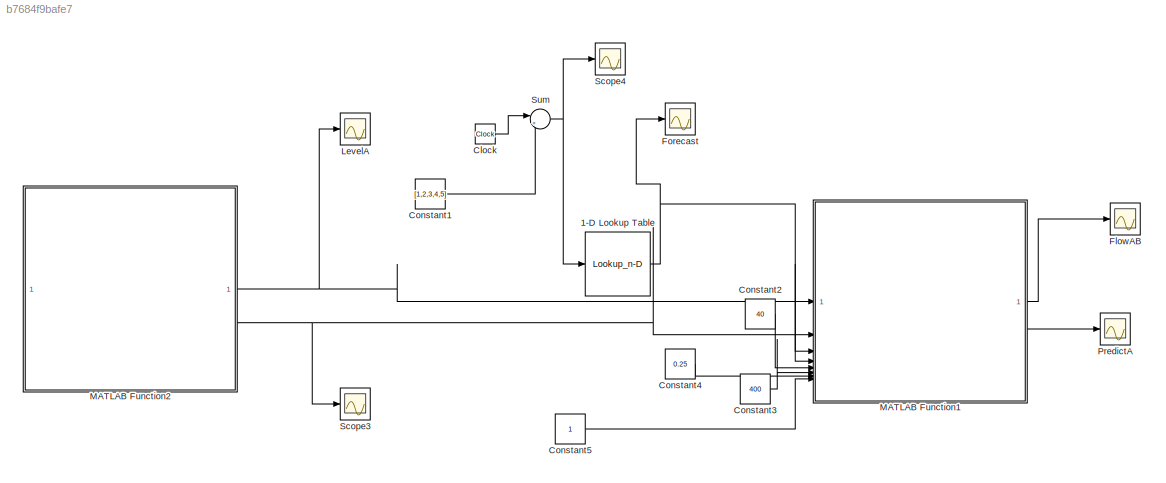
MODEL slx_b7684f9bafe7
KIND model
CONFIG AbsTol = auto
CONFIG EnableMultiTasking = off
CONFIG FixedStep = 1
CONFIG MaxStep = auto
CONFIG MinStep = auto
CONFIG RelTol = 1e-3
CONFIG SampleTimeConstraint = Unconstrained
CONFIG SolverName = FixedStepAuto
CONFIG StartTime = 0.0
CONFIG StopTime = 20
BLOCK [Lookup_n-D] 1-D Lookup Table
  BreakpointsForDimension1 = [0:19]
  InputPortMap = u0
  InternalRulePriority = Speed
  NumberOfTableDimensions = 1
  RndMeth = Simplest
  Table = verification(:,2)
BLOCK [Clock] Clock
BLOCK [Constant] Constant1
  Value = [1,2,3,4,5]
BLOCK [Constant] Constant2
  Value = 40
BLOCK [Constant] Constant3
  Value = 400
BLOCK [Constant] Constant4
  Value = 0.25
BLOCK [Constant] Constant5
BLOCK [Scope] FlowAB
  Floating = off
  NumInputPorts = 1
  ScopeSpecificationString = Simulink.scopes.TimeScopeBlockCfg('CurrentConfiguration', extmgr.ConfigurationSet(extmgr.Configuration('Core','General UI',true),extmgr.Configuration('Core','Source UI',true),extmgr.Configuration('Sources','WiredSimulink',true),extmgr.Configuration('Visuals','Time Domain',true,'SerializedDisplays',{struct('MinYLimReal','-0.05903','MaxYLimReal','0.53125','YLabelReal','','MinYLimMag','0.00000','MaxY...<+1538ch>
BLOCK [Scope] Forecast
  Floating = off
  NumInputPorts = 1
  ScopeSpecificationString = Simulink.scopes.TimeScopeBlockCfg('CurrentConfiguration', extmgr.ConfigurationSet(extmgr.Configuration('Core','General UI',true),extmgr.Configuration('Core','Source UI',true),extmgr.Configuration('Sources','WiredSimulink',true,'DataLoggingVariableName','ScopeData1'),extmgr.Configuration('Visuals','Time Domain',true,'PlotType','Line','SerializedDisplays',{struct('MinYLimReal','-0.525','MaxYLimReal'...<+2684ch>
BLOCK [Scope] LevelA
  Floating = off
  NumInputPorts = 1
  ScopeSpecificationString = Simulink.scopes.TimeScopeBlockCfg('CurrentConfiguration', extmgr.ConfigurationSet(extmgr.Configuration('Core','General UI',true),extmgr.Configuration('Core','Source UI',true),extmgr.Configuration('Sources','WiredSimulink',true,'DataLoggingVariableName','ScopeData3'),extmgr.Configuration('Visuals','Time Domain',true,'SerializedDisplays',{struct('MinYLimReal','-1.25','MaxYLimReal','11.25','YLabelRea...<+1588ch>
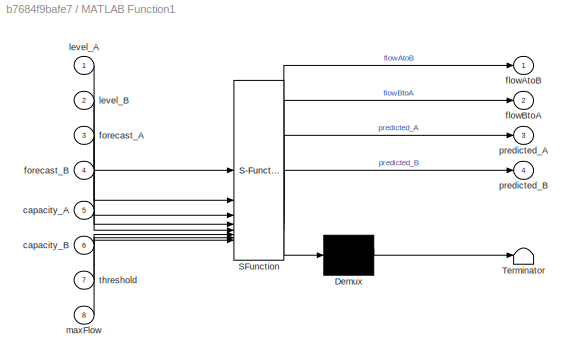
BLOCK [SubSystem] MATLAB Function1
  ErrorFcn = Stateflow.Translate.translate
  PermitHierarchicalResolution = ExplicitOnly
  SFBlockType = MATLAB Function
  TreatAsAtomicUnit = on
BLOCK [Demux] MATLAB Function1/ Demux 
  Outputs = 1
BLOCK [S-Function] MATLAB Function1/ SFunction 
  EnableBusSupport = on
  FunctionName = sf_sfun
  PortCounts = [8 5]
  SFcnIsStateOwnerBlock = off
  SFunctionDeploymentMode = off
  Tag = Stateflow S-Function 1
BLOCK [Terminator] MATLAB Function1/ Terminator 
BLOCK [Inport] MATLAB Function1/capacity_A
  Port = 5
BLOCK [Inport] MATLAB Function1/capacity_B
  Port = 6
BLOCK [Outport] MATLAB Function1/flowAtoB
BLOCK [Outport] MATLAB Function1/flowBtoA
  Port = 2
BLOCK [Inport] MATLAB Function1/forecast_A
  Port = 3
BLOCK [Inport] MATLAB Function1/forecast_B
  Port = 4
BLOCK [Inport] MATLAB Function1/level_A
BLOCK [Inport] MATLAB Function1/level_B
  Port = 2
BLOCK [Inport] MATLAB Function1/maxFlow
  Port = 8
BLOCK [Outport] MATLAB Function1/predicted_A
  Port = 3
BLOCK [Outport] MATLAB Function1/predicted_B
  Port = 4
BLOCK [Inport] MATLAB Function1/threshold
  Port = 7
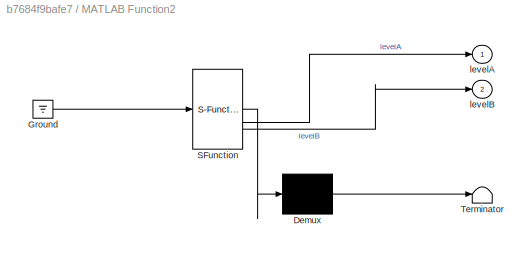
BLOCK [SubSystem] MATLAB Function2
  ErrorFcn = Stateflow.Translate.translate
  PermitHierarchicalResolution = ExplicitOnly
  SFBlockType = MATLAB Function
  TreatAsAtomicUnit = on
BLOCK [Demux] MATLAB Function2/ Demux 
  Outputs = 1
BLOCK [Ground] MATLAB Function2/ Ground 
BLOCK [S-Function] MATLAB Function2/ SFunction 
  EnableBusSupport = on
  FunctionName = sf_sfun
  PortCounts = [1 3]
  SFcnIsStateOwnerBlock = off
  SFunctionDeploymentMode = off
  Tag = Stateflow S-Function 2
BLOCK [Terminator] MATLAB Function2/ Terminator 
BLOCK [Outport] MATLAB Function2/levelA
BLOCK [Outport] MATLAB Function2/levelB
  Port = 2
BLOCK [Scope] PredictA
  Floating = off
  NumInputPorts = 1
  ScopeSpecificationString = Simulink.scopes.TimeScopeBlockCfg('CurrentConfiguration', extmgr.ConfigurationSet(extmgr.Configuration('Core','General UI',true),extmgr.Configuration('Core','Source UI',true),extmgr.Configuration('Sources','WiredSimulink',true,'DataLoggingVariableName','ScopeData2'),extmgr.Configuration('Visuals','Time Domain',true,'SerializedDisplays',{struct('MinYLimReal','-2.125','MaxYLimReal','19.125','YLabelR...<+1733ch>
BLOCK [Scope] Scope3
  Floating = off
  NumInputPorts = 1
  ScopeSpecificationString = Simulink.scopes.TimeScopeBlockCfg('CurrentConfiguration', extmgr.ConfigurationSet(extmgr.Configuration('Core','General UI',true),extmgr.Configuration('Core','Source UI',true),extmgr.Configuration('Sources','WiredSimulink',true,'DataLoggingVariableName','ScopeData4'),extmgr.Configuration('Visuals','Time Domain',true,'SerializedDisplays',{struct('MinYLimReal','-1.25','MaxYLimReal','11.25','YLabelRea...<+1536ch>
BLOCK [Scope] Scope4
  Floating = off
  NumInputPorts = 1
  ScopeSpecificationString = Simulink.scopes.TimeScopeBlockCfg('CurrentConfiguration', extmgr.ConfigurationSet(extmgr.Configuration('Core','General UI',true),extmgr.Configuration('Core','Source UI',true),extmgr.Configuration('Sources','WiredSimulink',true,'DataLoggingVariableName','ScopeData5'),extmgr.Configuration('Visuals','Time Domain',true,'PlotType','Line','SerializedDisplays',{struct('MinYLimReal','-2.00000','MaxYLimRea...<+2627ch>
BLOCK [Sum] Sum
  Inputs = |++
NET 1-D Lookup Table:1 -> Forecast:1, MATLAB Function1:3, MATLAB Function1:4
LINE Clock:1 -> Sum:1
LINE Constant1:1 -> Sum:2
LINE Constant2:1 -> MATLAB Function1:5
LINE Constant3:1 -> MATLAB Function1:6
LINE Constant4:1 -> MATLAB Function1:7
LINE Constant5:1 -> MATLAB Function1:8
LINE MATLAB Function1:1 -> FlowAB:1
LINE MATLAB Function1:3 -> PredictA:1
NET MATLAB Function2:1 -> LevelA:1, MATLAB Function1:1
NET MATLAB Function2:2 -> MATLAB Function1:2, Scope3:1
NET Sum:1 -> 1-D Lookup Table:1, Scope4:1
note: NET lines group one-source signal fan-out (src -> all destinations, sorted); 1:1 wires keep LINE
CHART MATLAB Function1 states=1 transitions=1
  STATE_LABEL 'eML_blk_kernel()'
  STATE_LABEL 'SCRIPT:\nfunction [flowAtoB, flowBtoA, predicted_A, predicted_B] = ...\n    predictive_controller(level_A, level_B, ...\n                          forecast_A, forecast_B, ...\n                          capacity_A, capacity_B, ...\n                          threshold, maxFlow)\n\n    % Initialize\n    predicted_A = zeros(5,1);\n    predicted_B = zeros(5,1);\n\n    % Compute threshold levels in m^3\n    thresho...<+1312ch>'
CHART MATLAB Function2 states=1 transitions=1
  STATE_LABEL 'eML_blk_kernel()'
  STATE_LABEL 'SCRIPT:\nfunction [levelA, levelB] = storage_levels()\n    % Define persistent variables to keep track of levels\n    persistent a b\n\n    if isempty(a)\n        a = 0; % Initial level A\n    end\n    if isempty(b)\n        b = 0; % Initial level B\n    end\n\n    % Output current levels\n    levelA = a;\n    levelB = b;\n\n    % Update for next timestep\n    a = a + 1;     % A increases by 1\n    b = b + 0.5;   %...<+24ch>'
CHART  states=0 transitions=0
CHART  states=0 transitions=0
